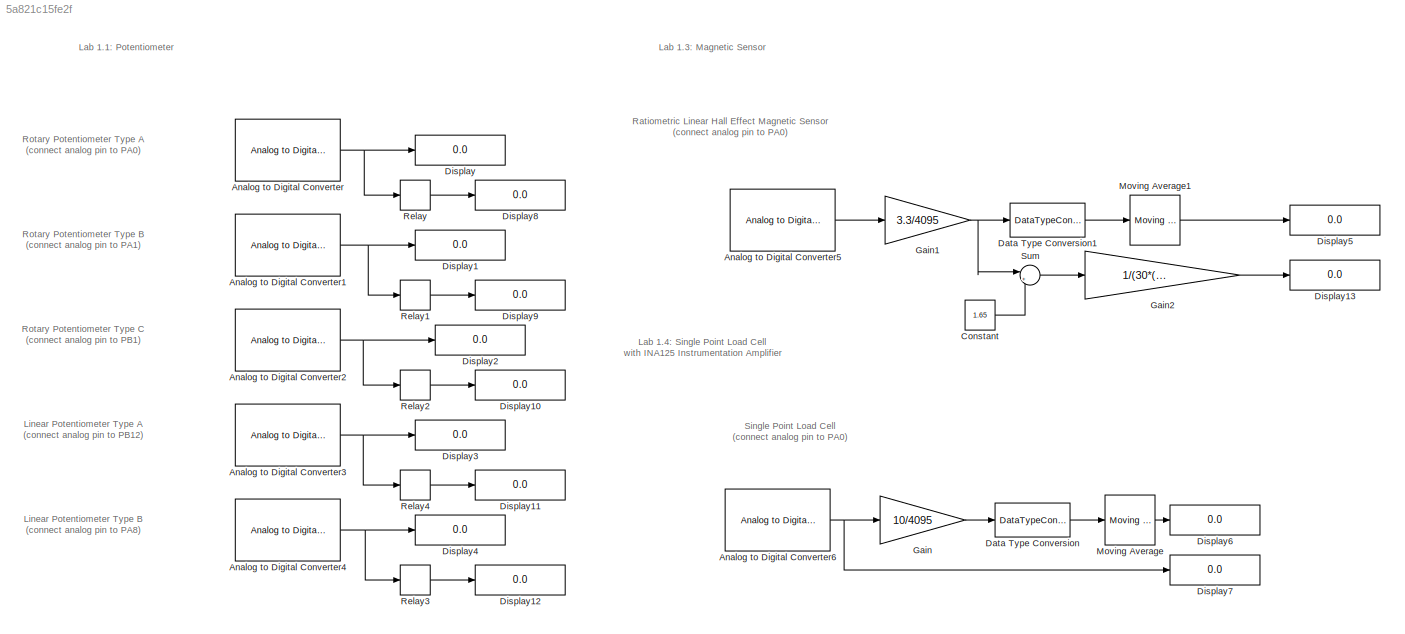
MODEL slx_5a821c15fe2f
KIND model
CONFIG AbsTol = auto
CONFIG EnableMultiTasking = on
CONFIG FixedStep = auto
CONFIG MaxStep = auto
CONFIG MinStep = auto
CONFIG RelTol = 1e-3
CONFIG SampleTimeConstraint = Unconstrained
CONFIG SolverName = FixedStepAuto
CONFIG StartTime = 0.0
CONFIG StopTime = inf
BLOCK [Reference] Analog to Digital Converter  REF=stm32f4xxblockslib/Analog to Digital Converter
  LibrarySourceBlock = stm32g4xxblockslib/Analog to Digital Converter
  SourceBlock = stm32f4xxblockslib/Analog to Digital Converter
  SourceType = stm32cube.blocks.AnalogInput
BLOCK [Reference] Analog to Digital Converter1  REF=stm32f4xxblockslib/Analog to Digital Converter
  LibrarySourceBlock = stm32g4xxblockslib/Analog to Digital Converter
  SourceBlock = stm32f4xxblockslib/Analog to Digital Converter
  SourceType = stm32cube.blocks.AnalogInput
BLOCK [Reference] Analog to Digital Converter2  REF=stm32f4xxblockslib/Analog to Digital Converter
  LibrarySourceBlock = stm32g4xxblockslib/Analog to Digital Converter
  SourceBlock = stm32f4xxblockslib/Analog to Digital Converter
  SourceType = stm32cube.blocks.AnalogInput
BLOCK [Reference] Analog to Digital Converter3  REF=stm32f4xxblockslib/Analog to Digital Converter
  LibrarySourceBlock = stm32g4xxblockslib/Analog to Digital Converter
  SourceBlock = stm32f4xxblockslib/Analog to Digital Converter
  SourceType = stm32cube.blocks.AnalogInput
BLOCK [Reference] Analog to Digital Converter4  REF=stm32f4xxblockslib/Analog to Digital Converter
  LibrarySourceBlock = stm32g4xxblockslib/Analog to Digital Converter
  SourceBlock = stm32f4xxblockslib/Analog to Digital Converter
  SourceType = stm32cube.blocks.AnalogInput
BLOCK [Reference] Analog to Digital Converter5  REF=stm32f4xxblockslib/Analog to Digital Converter
  LibrarySourceBlock = stm32g4xxblockslib/Analog to Digital Converter
  SourceBlock = stm32f4xxblockslib/Analog to Digital Converter
  SourceType = stm32cube.blocks.AnalogInput
BLOCK [Reference] Analog to Digital Converter6  REF=stm32f4xxblockslib/Analog to Digital Converter
  LibrarySourceBlock = stm32g4xxblockslib/Analog to Digital Converter
  SourceBlock = stm32f4xxblockslib/Analog to Digital Converter
  SourceType = stm32cube.blocks.AnalogInput
BLOCK [Constant] Constant
  Value = 1.65
BLOCK [DataTypeConversion] Data Type Conversion
  OutDataTypeStr = double
  RndMeth = Floor
  SaturateOnIntegerOverflow = off
BLOCK [DataTypeConversion] Data Type Conversion1
  OutDataTypeStr = double
  RndMeth = Floor
  SaturateOnIntegerOverflow = off
BLOCK [Display] Display
  Decimation = 1
BLOCK [Display] Display1
  Decimation = 1
BLOCK [Display] Display10
  Decimation = 1
BLOCK [Display] Display11
  Decimation = 1
BLOCK [Display] Display12
  Decimation = 1
BLOCK [Display] Display13
  Decimation = 1
BLOCK [Display] Display2
  Decimation = 1
BLOCK [Display] Display3
  Decimation = 1
BLOCK [Display] Display4
  Decimation = 1
BLOCK [Display] Display5
  Decimation = 1
BLOCK [Display] Display6
  Decimation = 1
BLOCK [Display] Display7
  Decimation = 1
BLOCK [Display] Display8
  Decimation = 1
BLOCK [Display] Display9
  Decimation = 1
BLOCK [Gain] Gain
  Gain = 10/4095
BLOCK [Gain] Gain1
  Gain = 3.3/4095
BLOCK [Gain] Gain2
  Gain = 1/(30*(1+0.12*(25-25)))
BLOCK [Reference] Moving Average  REF=dspstat3/Moving
Average
  SourceBlock = dspstat3/Moving\nAverage
  SourceType = dsp.simulink.MovingAverage
BLOCK [Reference] Moving Average1  REF=dspstat3/Moving
Average
  SourceBlock = dspstat3/Moving\nAverage
  SourceType = dsp.simulink.MovingAverage
BLOCK [Relay] Relay
  OffSwitchValue = 4095*0.2
  OnSwitchValue = 4095*0.8
BLOCK [Relay] Relay1
  OffSwitchValue = 4095*0.2
  OnSwitchValue = 4095*0.8
BLOCK [Relay] Relay2
  OffSwitchValue = 4095*0.2
  OnSwitchValue = 4095*0.8
BLOCK [Relay] Relay3
  OffSwitchValue = 4095*0.2
  OnSwitchValue = 4095*0.8
BLOCK [Relay] Relay4
  OffSwitchValue = 4095*0.2
  OnSwitchValue = 4095*0.8
BLOCK [Sum] Sum
  Inputs = |+-
ANNOTATION (root): Single Point Load Cell (connect analog pin to PA0)
ANNOTATION (root): Lab 1.4: Single Point Load Cell with INA125 Instrumentation Amplifier
ANNOTATION (root): Ratiometric Linear Hall Effect Magnetic Sensor (connect analog pin to PA0)
ANNOTATION (root): Lab 1.1: Potentiometer
ANNOTATION (root): Lab 1.3: Magnetic Sensor
ANNOTATION (root): Linear Potentiometer Type A (connect analog pin to PB12)
ANNOTATION (root): Linear Potentiometer Type B (connect analog pin to PA8)
ANNOTATION (root): Rotary Potentiometer Type A (connect analog pin to PA0)
ANNOTATION (root): Rotary Potentiometer Type B (connect analog pin to PA1)
ANNOTATION (root): Rotary Potentiometer Type C (connect analog pin to PB1)
NET Analog to Digital Converter1:1 -> Display1:1, Relay1:1
NET Analog to Digital Converter2:1 -> Display2:1, Relay2:1
NET Analog to Digital Converter3:1 -> Display3:1, Relay4:1
NET Analog to Digital Converter4:1 -> Display4:1, Relay3:1
LINE Analog to Digital Converter5:1 -> Gain1:1
NET Analog to Digital Converter6:1 -> Display7:1, Gain:1
NET Analog to Digital Converter:1 -> Display:1, Relay:1
LINE Constant:1 -> Sum:2
LINE Data Type Conversion1:1 -> Moving Average1:1
LINE Data Type Conversion:1 -> Moving Average:1
NET Gain1:1 -> Data Type Conversion1:1, Sum:1
LINE Gain2:1 -> Display13:1
LINE Gain:1 -> Data Type Conversion:1
LINE Moving Average1:1 -> Display5:1
LINE Moving Average:1 -> Display6:1
LINE Relay1:1 -> Display9:1
LINE Relay2:1 -> Display10:1
LINE Relay3:1 -> Display12:1
LINE Relay4:1 -> Display11:1
LINE Relay:1 -> Display8:1
LINE Sum:1 -> Gain2:1
note: NET lines group one-source signal fan-out (src -> all destinations, sorted); 1:1 wires keep LINE
